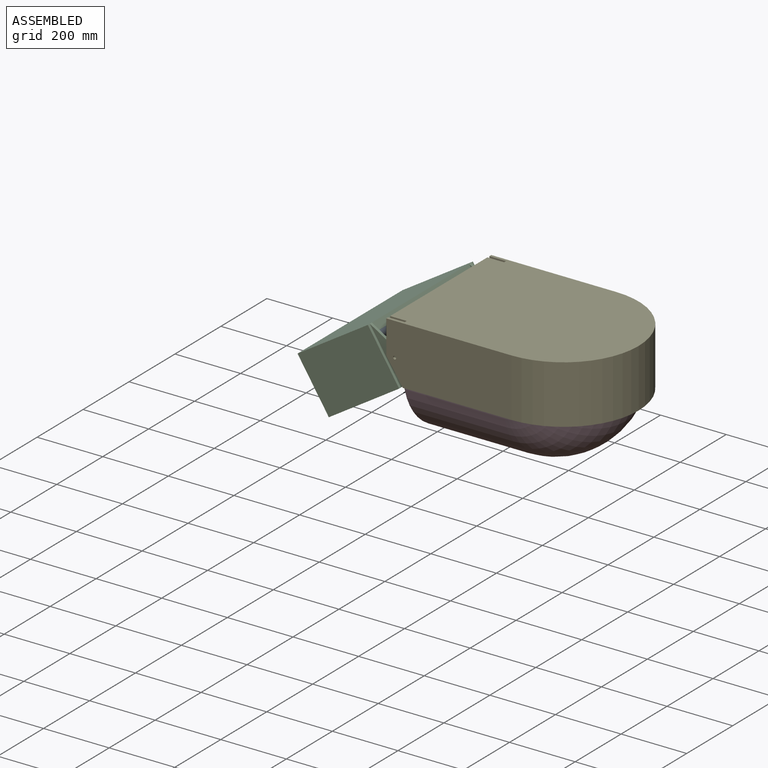
[diagram: assembled view]
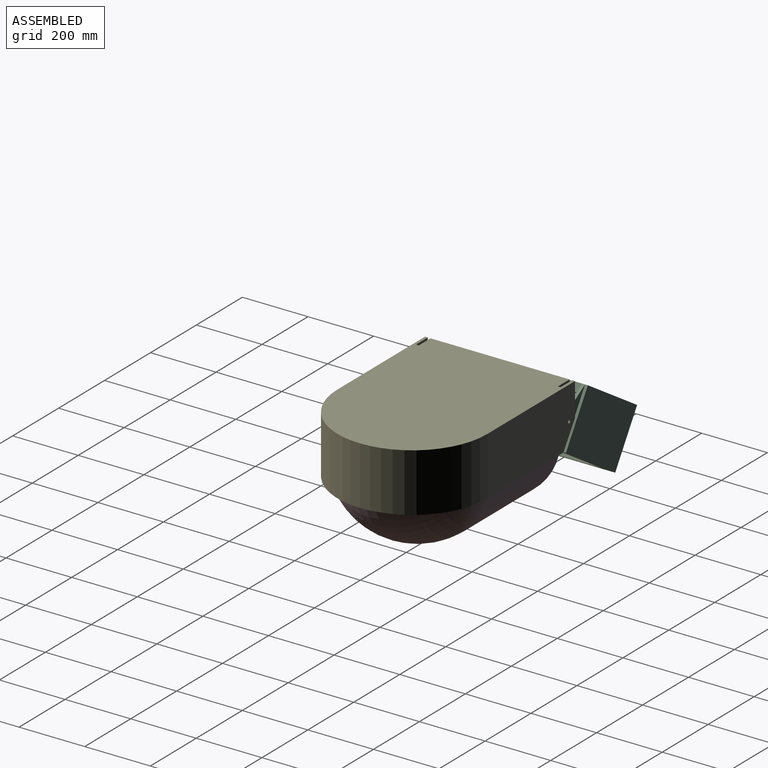
[diagram: assembled view, second angle]
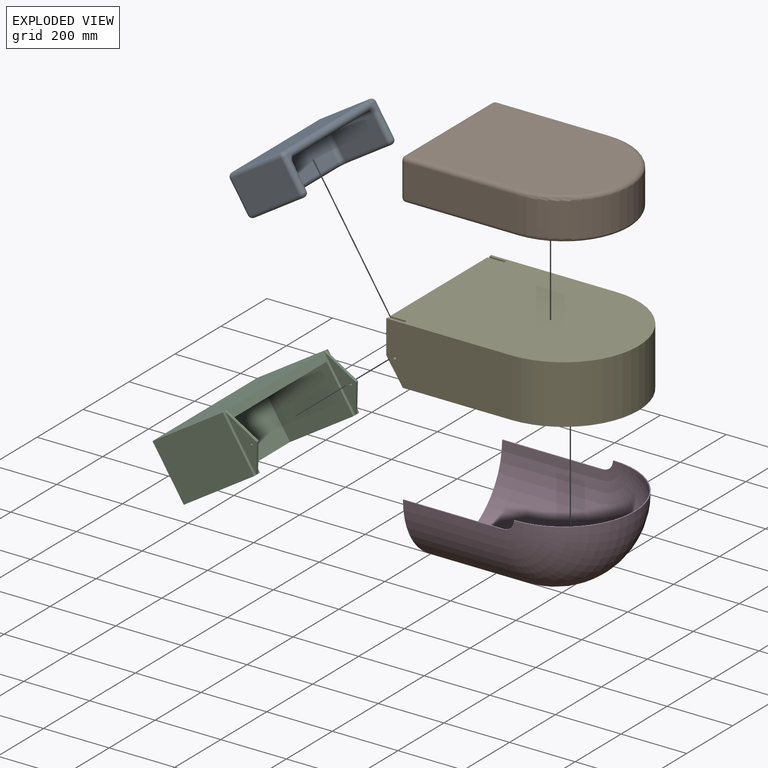
[diagram: exploded view]
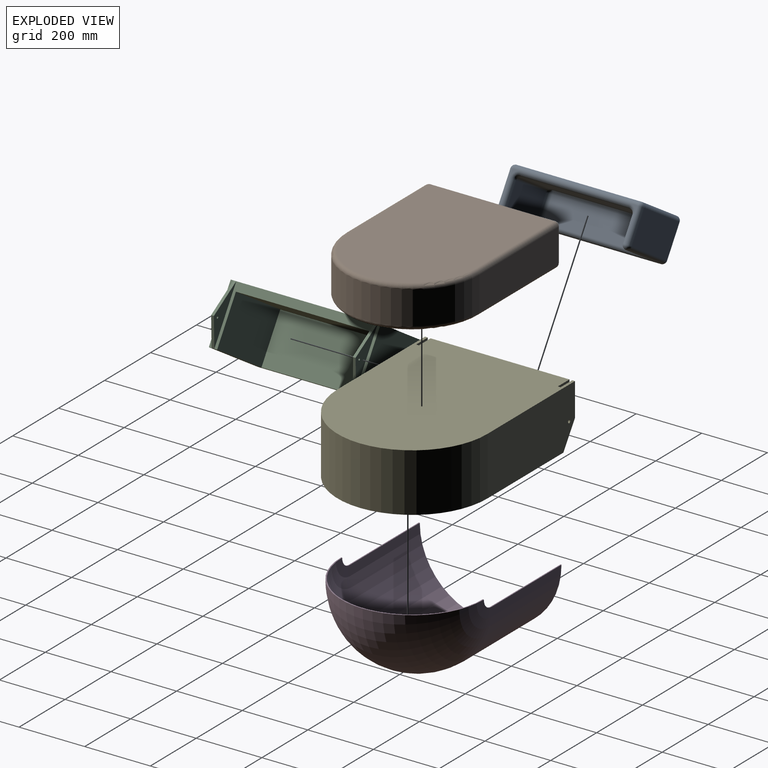
[diagram: exploded view, second angle]
ASSEMBLY  parts=5 mates=9
PART A: 42 faces, bbox 406.4x127x203.2 mm
  f0: plane 25.4x25.4mm, normal (0,1,0), area 138.5mm2, adj f25,f26,f36
  f1: plane 25.4x25.4mm, normal (0,0,-1), area 138.5mm2, adj f23,f33,f34
  f2: plane 152.4x76.2mm, normal (1,0,0), area 11612.9mm2, adj f26,f32,f38,f41
  f3: plane 330.2x76.2mm, normal (0,0,-1), area 25161.2mm2, adj f25,f31,f37,f38
  f4: plane 152.4x76.2mm, normal (-1,0,0), area 11612.9mm2, adj f12,f23,f30,f31
  f5: plane 177.8x101.6mm, normal (-1,0,0), area 18064.5mm2, adj f15,f21,f26,f32
  f6: plane 25.4x25.4mm, normal (0,0,-1), area 138.5mm2, adj f32,f33,f39
  f7: plane 177.8x101.6mm, normal (1,0,0), area 18064.5mm2, adj f12,f14,f22,f23
  f8: plane 381x101.6mm, normal (0,0,1), area 38709.6mm2, adj f13,f14,f15,f25
  f9: plane 381x177.8mm, normal (0,-1,0), area 67741.8mm2, adj f13,f21,f22,f33
  f10: plane 25.4x25.4mm, normal (0,1,0), area 138.5mm2, adj f12,f24,f25
  f11: plane 330.2x152.4mm, normal (0,1,0), area 50322.5mm2, adj f30,f33,f37,f41
  f12: cylinder r=12.7mm len=177.8mm, axis (0,0,1), area 6587.2mm2, adj f4,f7,f10,f18,f19,f24
  f13: cylinder r=12.7mm len=381mm, axis (1,0,0), area 7600.6mm2, adj f8,f9,f16,f17
  f14: cylinder r=12.7mm len=101.6mm, axis (0,-1,0), area 2026.8mm2, adj f7,f8,f17,f19
  f15: cylinder r=12.7mm len=101.6mm, axis (0,1,0), area 2026.8mm2, adj f5,f8,f16,f20
  f16: sphere r=12.7mm, area 253.4mm2, adj f13,f15,f21
  f17: sphere r=12.7mm, area 253.4mm2, adj f13,f14,f22
  f18: sphere r=12.7mm, area 506.7mm2, adj f12,f23
  f19: sphere r=12.7mm, area 253.4mm2, adj f12,f14,f25
  f20: sphere r=12.7mm, area 253.4mm2, adj f15,f25,f26
  f21: cylinder r=12.7mm len=177.8mm, axis (0,0,1), area 3547mm2, adj f5,f9,f16,f28
  f22: cylinder r=12.7mm len=177.8mm, axis (0,0,-1), area 3547mm2, adj f7,f9,f17,f29
  f23: cylinder r=12.7mm len=101.6mm, axis (0,-1,0), area 3547mm2, adj f1,f4,f7,f18,f29,f34
  f24: torus R=25.4mm, axis (0,-1,0), area 542.6mm2, adj f10,f12,f25,f31
  f25: cylinder r=12.7mm len=381mm, axis (-1,0,0), area 14187.8mm2, adj f0,f3,f8,f10,f19,f20,f24,f36
  f26: cylinder r=12.7mm len=177.8mm, axis (0,0,-1), area 6587.2mm2, adj f0,f2,f5,f20,f27,f36
  f27: sphere r=12.7mm, area 506.7mm2, adj f26,f32
  f28: sphere r=12.7mm, area 253.4mm2, adj f21,f32,f33
  f29: sphere r=12.7mm, area 253.4mm2, adj f22,f23,f33
  f30: cylinder r=12.7mm len=152.4mm, axis (0,0,1), area 3040.2mm2, adj f4,f11,f34,f35
  f31: cylinder r=12.7mm len=76.2mm, axis (0,1,0), area 1520.1mm2, adj f3,f4,f24,f35
  f32: cylinder r=12.7mm len=101.6mm, axis (0,1,0), area 3547mm2, adj f2,f5,f6,f27,f28,f39
  f33: cylinder r=12.7mm len=381mm, axis (1,0,0), area 14187.8mm2, adj f1,f6,f9,f11,f28,f29,f34,f39
  f34: torus R=25.4mm, axis (0,0,-1), area 542.6mm2, adj f1,f23,f30,f33
  f35: sphere r=12.7mm, area 253.4mm2, adj f30,f31,f37
  f36: torus R=25.4mm, axis (0,-1,0), area 542.6mm2, adj f0,f25,f26,f38
  f37: cylinder r=12.7mm len=330.2mm, axis (-1,0,0), area 6587.2mm2, adj f3,f11,f35,f40
  f38: cylinder r=12.7mm len=76.2mm, axis (0,-1,0), area 1520.1mm2, adj f2,f3,f36,f40
  f39: torus R=25.4mm, axis (0,0,-1), area 542.6mm2, adj f6,f32,f33,f41
  f40: sphere r=12.7mm, area 253.4mm2, adj f37,f38,f41
  f41: cylinder r=12.7mm len=152.4mm, axis (0,0,-1), area 3040.2mm2, adj f2,f11,f39,f40
PART B: 38 faces, bbox 439.9x575.5x127 mm
  f0: plane 342.9x63.5mm, normal (1,0,0), area 21774.1mm2, adj f1,f10,f15,f16
  f1: cylinder r=152.4mm len=304.8mm, axis (0,0,-1), area 30402.4mm2, adj f0,f2,f11,f18
  f2: plane 342.9x63.5mm, normal (-1,0,0), area 21774.1mm2, adj f1,f14,f20,f21
  f3: plane 342.9x101.6mm, normal (1,0,0), area 34838.6mm2, adj f4,f28,f33,f37
  f4: cylinder r=203.2mm len=406.4mm, axis (0,0,-1), area 64858.6mm2, adj f3,f5,f25,f36
  f5: plane 342.9x101.6mm, normal (-1,0,0), area 34838.6mm2, adj f4,f22,f29,f34
  f6: plane 381x101.6mm, normal (0,-1,0), area 9631.7mm2, adj f12,f13,f16,f17,f20,f23,f27,f29
  f7: plane 533.4x381mm, normal (0,0,1), area 31607.1mm2, adj f15,f18,f21,f22,f23,f25,f27,f28
  f8: plane 533.4x381mm, normal (0,0,-1), area 187649.5mm2, adj f32,f34,f36,f37
  f9: plane 482.6x279.4mm, normal (0,0,1), area 126462.1mm2, adj f10,f11,f13,f14
  f10: cylinder r=12.7mm len=342.9mm, axis (0,-1,0), area 6840.6mm2, adj f0,f9,f11,f12
  f11: torus R=139.7mm, axis (0,0,-1), area 9262mm2, adj f1,f9,f10,f14
  f12: torus R=25.4mm, axis (0,1,0), area 542.6mm2, adj f6,f10,f13,f16
  f13: cylinder r=12.7mm len=279.4mm, axis (1,0,0), area 5573.8mm2, adj f6,f9,f12,f17
  f14: cylinder r=12.7mm len=342.9mm, axis (0,1,0), area 6840.6mm2, adj f2,f9,f11,f17
  f15: cylinder r=12.7mm len=342.9mm, axis (0,-1,0), area 6840.6mm2, adj f0,f7,f18,f19
  f16: cylinder r=12.7mm len=63.5mm, axis (0,0,1), area 1266.8mm2, adj f0,f6,f12,f19
  f17: torus R=25.4mm, axis (0,1,0), area 542.6mm2, adj f6,f13,f14,f20
  f18: torus R=165.1mm, axis (0,0,1), area 9840.4mm2, adj f1,f7,f15,f21
  f19: sphere r=12.7mm, area 253.4mm2, adj f15,f16,f23
  f20: cylinder r=12.7mm len=63.5mm, axis (0,0,1), area 1266.8mm2, adj f2,f6,f17,f24
  f21: cylinder r=12.7mm len=342.9mm, axis (0,1,0), area 6840.6mm2, adj f2,f7,f18,f24
  f22: cylinder r=12.7mm len=342.9mm, axis (0,1,0), area 6840.6mm2, adj f5,f7,f25,f26
  f23: cylinder r=12.7mm len=25.4mm, axis (-1,0,0), area 506.7mm2, adj f6,f7,f19,f26
  f24: sphere r=12.7mm, area 253.4mm2, adj f20,f21,f27
  f25: torus R=190.5mm, axis (0,0,1), area 12445.7mm2, adj f4,f7,f22,f28
  f26: sphere r=12.7mm, area 253.4mm2, adj f22,f23,f29
  f27: cylinder r=12.7mm len=25.4mm, axis (-1,0,0), area 506.7mm2, adj f6,f7,f24,f30
  f28: cylinder r=12.7mm len=342.9mm, axis (0,-1,0), area 6840.6mm2, adj f3,f7,f25,f30
  f29: cylinder r=12.7mm len=101.6mm, axis (0,0,1), area 2026.8mm2, adj f5,f6,f26,f31
  f30: sphere r=12.7mm, area 253.4mm2, adj f27,f28,f33
  f31: sphere r=12.7mm, area 253.4mm2, adj f29,f32,f34
  f32: cylinder r=12.7mm len=381mm, axis (1,0,0), area 7600.6mm2, adj f6,f8,f31,f35
  f33: cylinder r=12.7mm len=101.6mm, axis (0,0,-1), area 2026.8mm2, adj f3,f6,f30,f35
  f34: cylinder r=12.7mm len=342.9mm, axis (0,-1,0), area 6840.6mm2, adj f5,f8,f31,f36
  f35: sphere r=12.7mm, area 253.4mm2, adj f32,f33,f37
  f36: torus R=190.5mm, axis (0,0,1), area 12445.7mm2, adj f4,f8,f34,f37
  f37: cylinder r=12.7mm len=342.9mm, axis (0,1,0), area 6840.6mm2, adj f3,f8,f35,f36
PART C: 22 faces, bbox 457.2x304.8x177.8 mm
  f0: plane 406.4x228.6mm, normal (0,0,1), area 92903mm2, adj f2,f8,f10,f19
  f1: plane 254x177.8mm, normal (-1,0,0), area 45161.2mm2, adj f9,f11,f12,f17
  f2: plane 228.6x152.4mm, normal (1,0,0), area 34838.6mm2, adj f0,f10,f11,f19
  f3: plane 101.6x50.8mm, normal (0,0.89,-0.45), area 961.7mm2, adj f6,f12,f13,f14
  f4: plane 101.6x50.8mm, normal (0,0.89,-0.45), area 961.7mm2, adj f5,f12,f16,f18
  f5: plane 76.2x50.8mm, normal (0,0.83,0.55), area 775.4mm2, adj f4,f11,f16,f18
  f6: plane 76.2x50.8mm, normal (0,0.83,0.55), area 775.4mm2, adj f3,f11,f13,f14
  f7: plane 254x177.8mm, normal (1,0,0), area 45161.2mm2, adj f9,f11,f12,f15
  f8: plane 228.6x152.4mm, normal (-1,0,0), area 34838.6mm2, adj f0,f10,f11,f19
  f9: plane 457.2x177.8mm, normal (0,-1,0), area 81290.2mm2, adj f1,f7,f11,f12
  f10: plane 406.4x152.4mm, normal (0,1,0), area 61935.4mm2, adj f0,f2,f8,f11
  f11: plane 457.2x254mm, normal (0,0,1), area 23225.8mm2, adj f1,f2,f5,f6,f7,f8,f9,f10
  f12: plane 457.2x254mm, normal (0,0,-1), area 116128.8mm2, adj f1,f3,f4,f7,f9,f15,f17,f19
  f13: plane 177.8x50.8mm, normal (-1,0,0), area 4484.5mm2, adj f3,f6,f19,f20
  f14: plane 177.8x50.8mm, normal (1,0,0), area 4484.5mm2, adj f3,f6,f15,f20
  f15: plane 177.8x8.47mm, normal (0,1,0), area 1505.4mm2, adj f7,f11,f12,f14
  f16: plane 177.8x50.8mm, normal (-1,0,0), area 4484.5mm2, adj f4,f5,f17,f21
  f17: plane 177.8x8.47mm, normal (0,1,0), area 1505.4mm2, adj f1,f11,f12,f16
  f18: plane 177.8x50.8mm, normal (1,0,0), area 4484.5mm2, adj f4,f5,f19,f21
  f19: plane 423.33x177.8mm, normal (0,1,0), area 13333.3mm2, adj f0,f2,f8,f11,f12,f13,f18
  f20: cylinder r=3.17mm len=8.47mm, axis (-1,0,0), area 168.9mm2, adj f13,f14
  f21: cylinder r=3.17mm len=8.47mm, axis (-1,0,0), area 168.9mm2, adj f16,f18
PART D: 10 faces, bbox 435x555.4x250.6 mm
  f0: cone r=33.07mm half-angle=0deg, axis (1,0,0), area 164.9mm2, adj f1,f3,f4,f5
  f1: torus R=33.07mm, axis (-1,0,0), area 179269.9mm2, adj f0,f2,f4,f6
  f2: cone r=33.07mm half-angle=0deg, axis (1,0,0), area 164.9mm2, adj f1,f3,f4,f7
  f3: torus R=33.07mm, axis (-1,0,0), area 184095.1mm2, adj f0,f2,f4,f8
  f4: plane 434.98x217.49mm, normal (0,0,-1), area 2153.5mm2, adj f0,f1,f2,f3
  f5: plane 304.8x3.18mm, normal (0,0,-1), area 967.7mm2, adj f0,f6,f8,f9
  f6: cylinder r=214.31mm len=428.63mm, axis (0,1,0), area 205216.5mm2, adj f1,f5,f7,f9
  f7: plane 304.8x3.18mm, normal (0,0,-1), area 967.7mm2, adj f2,f6,f8,f9
  f8: cylinder r=217.49mm len=434.98mm, axis (0,1,0), area 208256.8mm2, adj f3,f5,f7,f9
  f9: plane 434.98x217.49mm, normal (0,-1,0), area 2153.5mm2, adj f5,f6,f7,f8
PART E: 29 faces, bbox 609.6x457.2x177.8 mm
  f0: plane 558.79x457.2mm, normal (0,0,1), area 25387.4mm2, adj f3,f4,f5,f7,f16,f17,f22,f23
  f1: plane 101.6x8.47mm, normal (1,0,0), area 860.2mm2, adj f7,f9,f18,f23
  f2: plane 101.6x8.47mm, normal (1,0,0), area 860.2mm2, adj f3,f12,f18,f22
  f3: plane 381x177.8mm, normal (0,-1,0), area 65734.5mm2, adj f0,f2,f14,f17,f18,f22
  f4: plane 381x152.4mm, normal (0,1,0), area 56057.1mm2, adj f0,f6,f16,f19,f21,f22
  f5: plane 381x152.4mm, normal (0,-1,0), area 56057.1mm2, adj f0,f6,f16,f20,f21,f23
  f6: plane 423.33x101.6mm, normal (1,0,0), area 12043mm2, adj f4,f5,f8,f11,f18,f21,f22,f23
  f7: plane 381x177.8mm, normal (0,1,0), area 65734.5mm2, adj f0,f1,f15,f17,f18,f23
  f8: plane 177.78x50.8mm, normal (0,1,0), area 7024.9mm2, adj f6,f10,f18,f20,f23
  f9: plane 177.78x50.8mm, normal (0,-1,0), area 7024.9mm2, adj f1,f10,f15,f18,f23
  f10: plane 177.78x8.47mm, normal (1,0,0), area 1505.2mm2, adj f8,f9,f18,f23
  f11: plane 177.78x50.8mm, normal (0,-1,0), area 7024.9mm2, adj f6,f13,f18,f19,f22
  f12: plane 177.78x50.8mm, normal (0,1,0), area 7024.9mm2, adj f2,f13,f14,f18,f22
  f13: plane 177.78x8.47mm, normal (1,0,0), area 1505.2mm2, adj f11,f12,f18,f22
  f14: cylinder r=4.76mm len=9.53mm, axis (0,-1,0), area 253.4mm2, adj f3,f12
  f15: cylinder r=4.76mm len=9.53mm, axis (0,-1,0), area 253.4mm2, adj f7,f9
  f16: cylinder r=203.2mm len=406.4mm, axis (0,0,-1), area 97287.8mm2, adj f0,f4,f5,f21
  f17: cylinder r=228.6mm len=457.2mm, axis (0,0,-1), area 127690.3mm2, adj f0,f3,f7,f18
  f18: plane 609.6x457.2mm, normal (0,0,-1), area 255419.6mm2, adj f1,f2,f3,f6,f7,f8,f9,f10
  f19: cylinder r=4.76mm len=9.53mm, axis (0,-1,0), area 253.4mm2, adj f4,f11
  f20: cylinder r=4.76mm len=9.53mm, axis (0,-1,0), area 253.4mm2, adj f5,f8
  f21: plane 584.2x406.4mm, normal (0,0,1), area 219697mm2, adj f4,f5,f6,f16
  f22: plane 76.2x50.81mm, normal (0.83,0,0.55), area 1551.1mm2, adj f0,f2,f3,f4,f6,f11,f12,f13
  f23: plane 76.2x50.81mm, normal (0.83,0,0.55), area 1551.1mm2, adj f0,f1,f5,f6,f7,f8,f9,f10
  f24: plane 25.4x12.7mm, normal (-1,0,0), area 322.6mm2, adj f0,f25,f27,f28
  f25: cylinder r=222.25mm len=444.5mm, axis (0,0,1), area 17734.8mm2, adj f0,f24,f26,f28
  f26: plane 25.4x12.7mm, normal (-1,0,0), area 322.6mm2, adj f0,f25,f27,f28
  f27: cylinder r=209.55mm len=419.1mm, axis (0,0,1), area 16721.3mm2, adj f0,f24,f26,f28
  f28: plane 444.5x222.25mm, normal (0,0,1), area 8614mm2, adj f24,f25,f26,f27
PLACE A rot(axis=(-0.66,-0.66,0.36),140.2deg) t=(-313.45,229.59,-165.68)mm
PLACE B rot(axis=(0.71,0.71,0),180deg) t=(79.72,215.9,67.97)mm
PLACE C rot(axis=(0.69,0.69,0.2),157.2deg) t=(-208.8,431.8,81.39)mm
PLACE D rot(axis=(0.71,0.71,0),180deg) t=(185.21,444.5,-14.58)mm
PLACE E rot(axis=(0,1,0),180deg) t=(-228.28,457.2,87.02)mm
MATE cylindrical E.f16 <-> D.f4  axis (0,0,1) through (185.21,228.6,-14.58)mm
MATE planar C.f0 <-> A.f9  axis (0.54,0,-0.84) through (-334.53,228.6,-28.6)mm
MATE revolute E.f16 <-> B.f1  axis (0,0,1) through (185.21,228.6,-14.58)mm
MATE parallel A.f5 <-> C.f2  axis (0,-1,0) through (-311.19,25.4,-89)mm
MATE planar C.f10 <-> A.f8  axis (0.84,0,0.54) through (-390.13,228.6,-154.21)mm
MATE cylindrical E.f14 <-> C.f20  axis (0,-1,0) through (-170.39,0,-14.58)mm
MATE planar E.f8 <-> C.f13  axis (0,1,0) through (-168.06,440.27,15.75)mm
MATE parallel B.f3 <-> E.f5  axis (0,1,0) through (13.76,431.8,4.47)mm
MATE planar C.f8 <-> A.f7  axis (0,-1,0) through (-293.66,431.8,-92.91)mm
